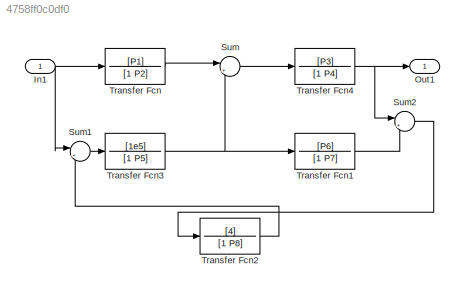
MODEL slx_4758ff0c0df0
KIND model
CONFIG AbsTol = auto
CONFIG EnableMultiTasking = off
CONFIG FixedStep = auto
CONFIG MaxStep = auto
CONFIG MinStep = auto
CONFIG RelTol = 1e-3
CONFIG SampleTimeConstraint = Unconstrained
CONFIG SolverName = VariableStepAuto
CONFIG StartTime = 0.0
CONFIG StopTime = 10.0
BLOCK [Inport] In1
BLOCK [Outport] Out1
BLOCK [Sum] Sum
  Inputs = |++
BLOCK [Sum] Sum1
  Inputs = |+-
BLOCK [Sum] Sum2
  Inputs = |++
BLOCK [TransferFcn] Transfer Fcn
  Denominator = [1 P2]
  Numerator = [P1]
BLOCK [TransferFcn] Transfer Fcn1
  Denominator = [1 P7]
  Numerator = [P6]
BLOCK [TransferFcn] Transfer Fcn2
  Denominator = [1 P8]
  Numerator = [4]
BLOCK [TransferFcn] Transfer Fcn3
  Denominator = [1 P5]
  Numerator = [1e5]
BLOCK [TransferFcn] Transfer Fcn4
  Denominator = [1 P4]
  Numerator = [P3]
NET In1:1 -> Sum1:1, Transfer Fcn:1
LINE Sum1:1 -> Transfer Fcn3:1
LINE Sum2:1 -> Transfer Fcn2:1
LINE Sum:1 -> Transfer Fcn4:1
LINE Transfer Fcn1:1 -> Sum2:2
LINE Transfer Fcn2:1 -> Sum1:2
NET Transfer Fcn3:1 -> Sum:2, Transfer Fcn1:1
NET Transfer Fcn4:1 -> Out1:1, Sum2:1
LINE Transfer Fcn:1 -> Sum:1
note: NET lines group one-source signal fan-out (src -> all destinations, sorted); 1:1 wires keep LINE
